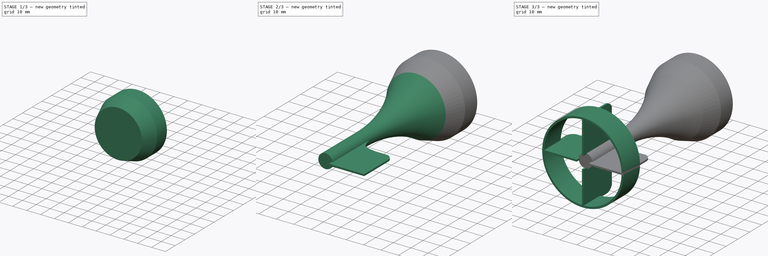
[diagram: build sequence overview — one tinted view per stage of 3, left to right]
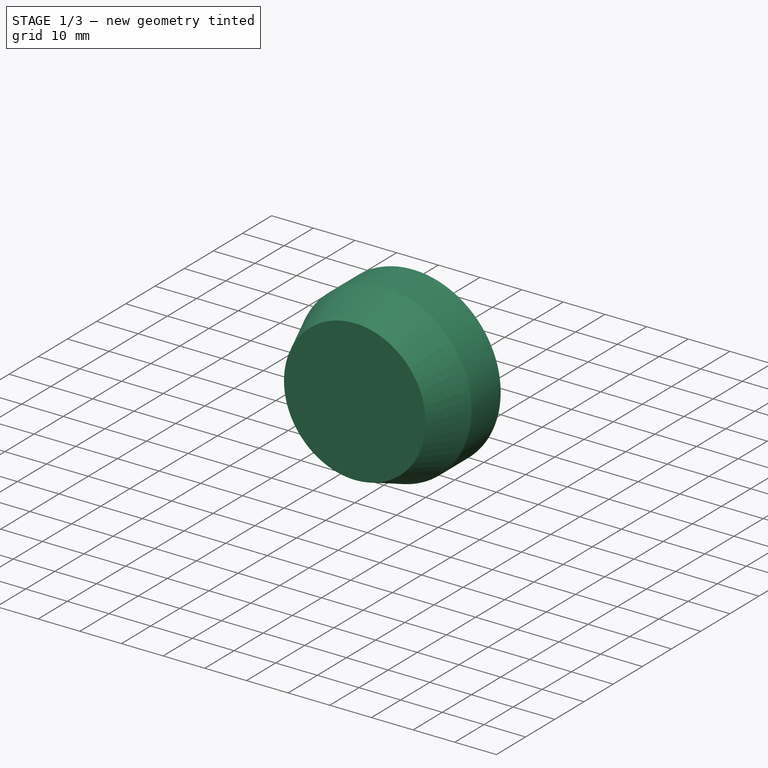
[diagram: stage 1 of 3 — iso view after this stage's code; geometry added in this stage tinted green]
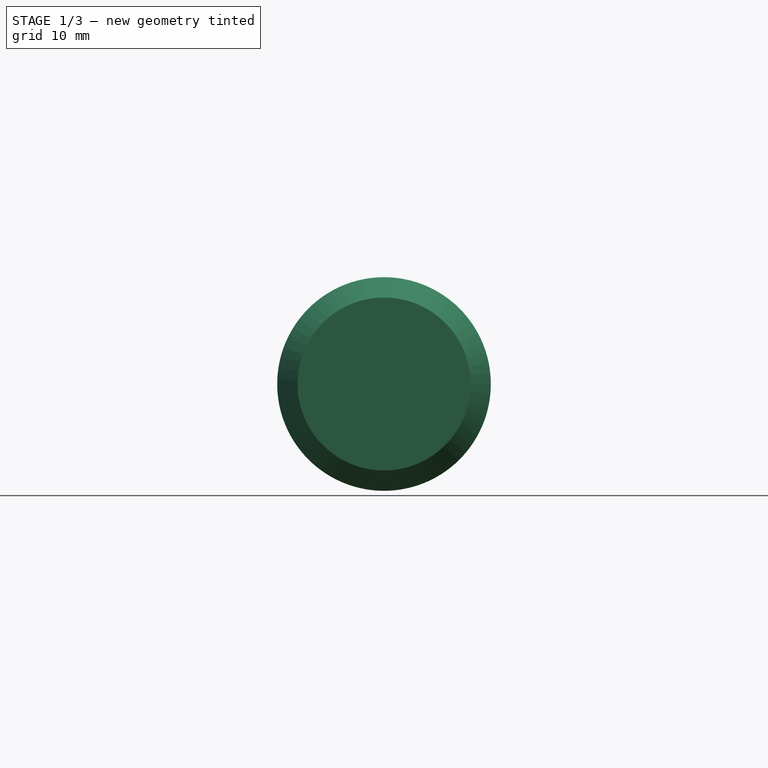
[diagram: stage 1 of 3 — front view after this stage's code; geometry added in this stage tinted green]
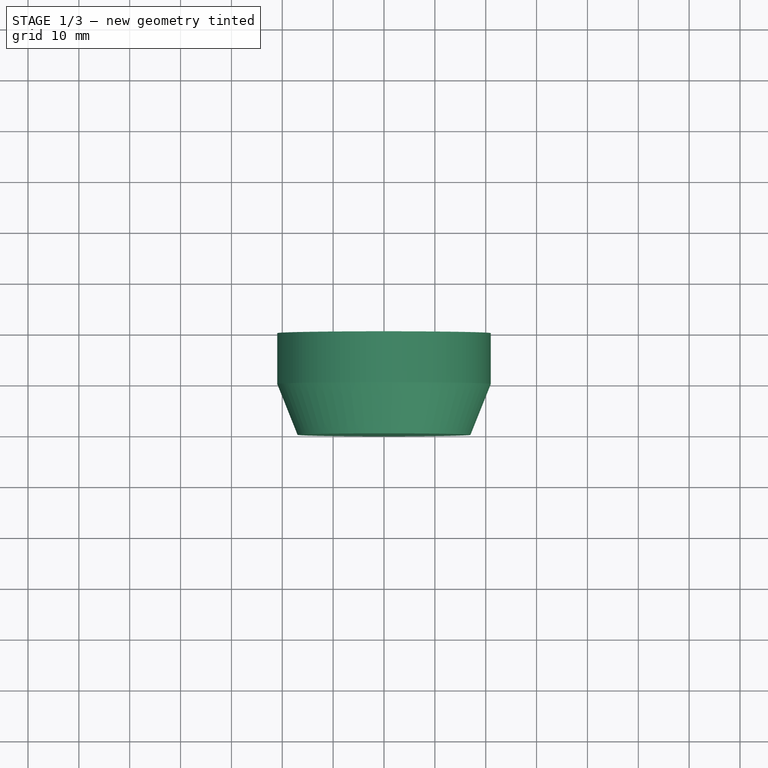
[diagram: stage 1 of 3 — top view after this stage's code; geometry added in this stage tinted green]
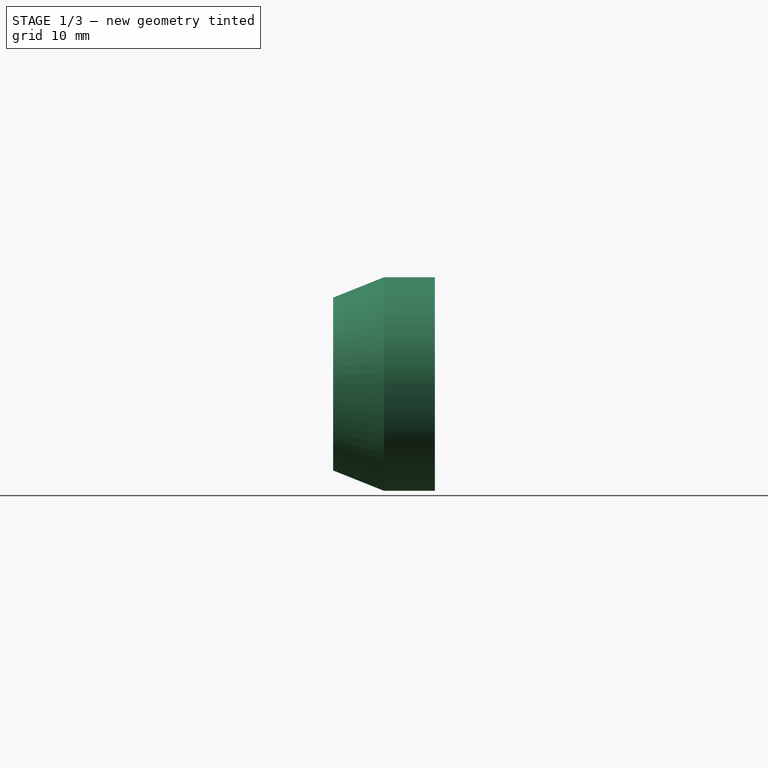
[diagram: stage 1 of 3 — right view after this stage's code; geometry added in this stage tinted green]
FCSTD DOCUMENT  (FreeCAD 0.21R33771 (Git))
Label: VOG-40_xvost
License: All rights reserved
LicenseURL: http://en.wikipedia.org/wiki/All_rights_reserved
objects: Sketcher::SketchObject×6, PartDesign::Pad×3, PartDesign::AdditiveLoft×1, PartDesign::Revolution×1, PartDesign::PolarPattern×1, PartDesign::Body×1
note: 18 computed .brp shape members not serialized (recipe doc carries the construction recipe); baked Part::Feature solids carry a one-line shape summary decoded from their .brp

FEATURE [Sketcher::SketchObject] Sketch
  FullyConstrained = false
  MapMode = 5
  Placement = pos=(0,0,0) rot=(1,0,0;1.5708rad)
  Support = -> [XZ_Plane]
  sketch-geometry (11):
    g0: LineSegment StartX=6.18034 StartY=19.0211 StartZ=0 EndX=-6.18034 EndY=19.0211 EndZ=0
    g1: LineSegment StartX=-16.1803 StartY=11.7557 StartZ=0 EndX=-20 EndY=1.8e-15 EndZ=0
    g2: LineSegment StartX=-16.1803 StartY=-11.7557 StartZ=0 EndX=-6.18034 EndY=-19.0211 EndZ=0
    g3: LineSegment StartX=6.18034 StartY=-19.0211 StartZ=0 EndX=16.1803 EndY=-11.7557 EndZ=0
    g4: LineSegment StartX=20 StartY=5.3e-15 StartZ=0 EndX=16.1803 EndY=11.7557 EndZ=0
    g5: ArcOfCircle CenterX=0 CenterY=0 CenterZ=0 NormalX=0 NormalY=0 NormalZ=1 AngleXU=0 Radius=20 StartAngle=1.88496 EndAngle=2.51327
    g6: ArcOfCircle CenterX=0 CenterY=0 CenterZ=0 NormalX=0 NormalY=0 NormalZ=1 AngleXU=0 Radius=20 StartAngle=3.14159 EndAngle=3.76991
    g7: ArcOfCircle CenterX=0 CenterY=0 CenterZ=0 NormalX=0 NormalY=0 NormalZ=1 AngleXU=0 Radius=20 StartAngle=4.39823 EndAngle=5.02655
    g8: ArcOfCircle CenterX=0 CenterY=0 CenterZ=0 NormalX=0 NormalY=0 NormalZ=1 AngleXU=0 Radius=20 StartAngle=5.65487 EndAngle=6.28319
    g9: ArcOfCircle CenterX=0 CenterY=0 CenterZ=0 NormalX=0 NormalY=0 NormalZ=1 AngleXU=0 Radius=20 StartAngle=0.628319 EndAngle=1.25664
    g10: Circle CenterX=0 CenterY=0 CenterZ=0 NormalX=0 NormalY=0 NormalZ=1 AngleXU=0 Radius=21
  constraints (27):
    c: PointOnObject(g2,g5)
    c: PointOnObject(g2,g5)
    c: PointOnObject(g3,g5)
    c: PointOnObject(g3,g5)
    c: PointOnObject(g4,g5)
    c: PointOnObject(g4,g5)
    c: Coincident(g5,g-1)
    c: Horizontal(g0)
    c: Distance(g4,g2) = 40
    c: Coincident(g5,g0)
    c: Equal(g5,g6)
    c: Coincident(g5,g1)
    c: Coincident(g6,g1)
    c: Coincident(g5,g6)
    c: Equal(g6,g7)
    c: PointOnObject(g6,g2)
    c: PointOnObject(g7,g2)
    c: Coincident(g6,g7)
    c: Equal(g7,g8)
    c: PointOnObject(g7,g3)
    c: PointOnObject(g8,g3)
    c: Coincident(g7,g8)
    c: Equal(g8,g9)
    c: PointOnObject(g8,g4)
    c: Coincident(g8,g9)
    c: Coincident(g10,g5)
    c: Radius(g10) = 21
FEATURE [PartDesign::Pad] Pad
  Direction = (0,-1,2e-16)
  Length = 10
  Length2 = 10
  Placement = pos=(0,0,0) rot=(1,0,0;1.5708rad)
  Profile = -> Sketch
  ReferenceAxis = -> Sketch [N_Axis]
  Refine = true
  Type = 0
FEATURE [Sketcher::SketchObject] Sketch001
  FullyConstrained = true
  MapMode = 5
  Placement = pos=(0,-10,2.2e-15) rot=(1,0,0;1.5708rad)
  Support = -> [Pad]
  sketch-geometry (1):
    g0: Circle CenterX=0 CenterY=0 CenterZ=0 NormalX=0 NormalY=0 NormalZ=1 AngleXU=0 Radius=21
  constraints (2):
    c: Coincident(g0,g-1)
    c: Radius(g0) = 21
FEATURE [Sketcher::SketchObject] Sketch002
  AttachmentOffset = pos=(0,0,20) rot=(0,0,1;0rad)
  FullyConstrained = true
  MapMode = 5
  Placement = pos=(0,-20,4.4e-15) rot=(1,0,0;1.5708rad)
  Support = -> [XZ_Plane]
  sketch-geometry (1):
    g0: Circle CenterX=0 CenterY=0 CenterZ=0 NormalX=0 NormalY=0 NormalZ=1 AngleXU=0 Radius=17
  constraints (2):
    c: Coincident(g0,g-1)
    c: Radius(g0) = 17
FEATURE [PartDesign::AdditiveLoft] AdditiveLoft
  BaseFeature = -> Pad
  Closed = false
  Placement = pos=(0,0,0) rot=(1,0,0;1.5708rad)
  Profile = -> Sketch001
  Refine = true
  Ruled = false
  Sections = -> [Sketch002]
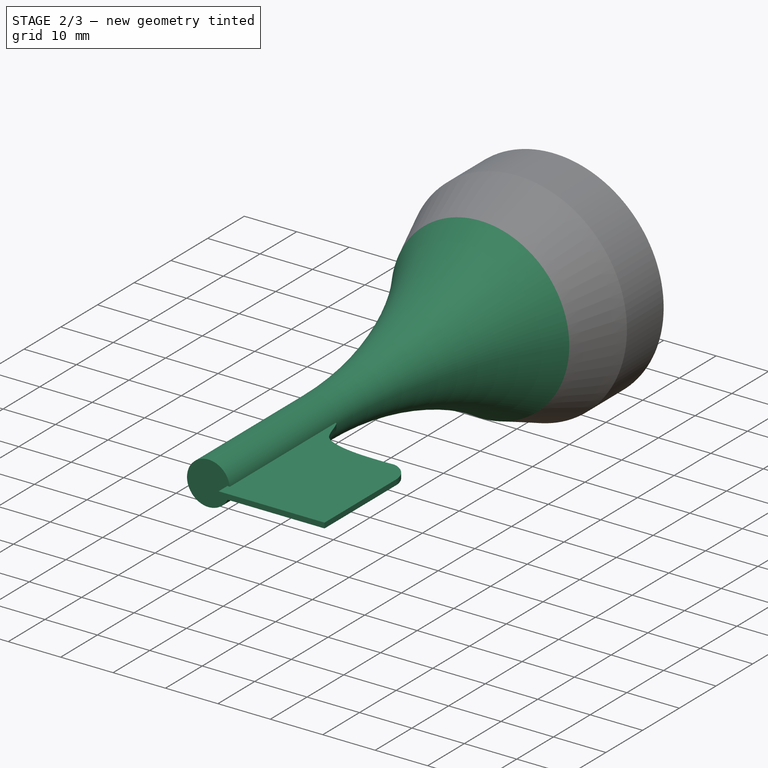
[diagram: stage 2 of 3 — iso view after this stage's code; geometry added in this stage tinted green]
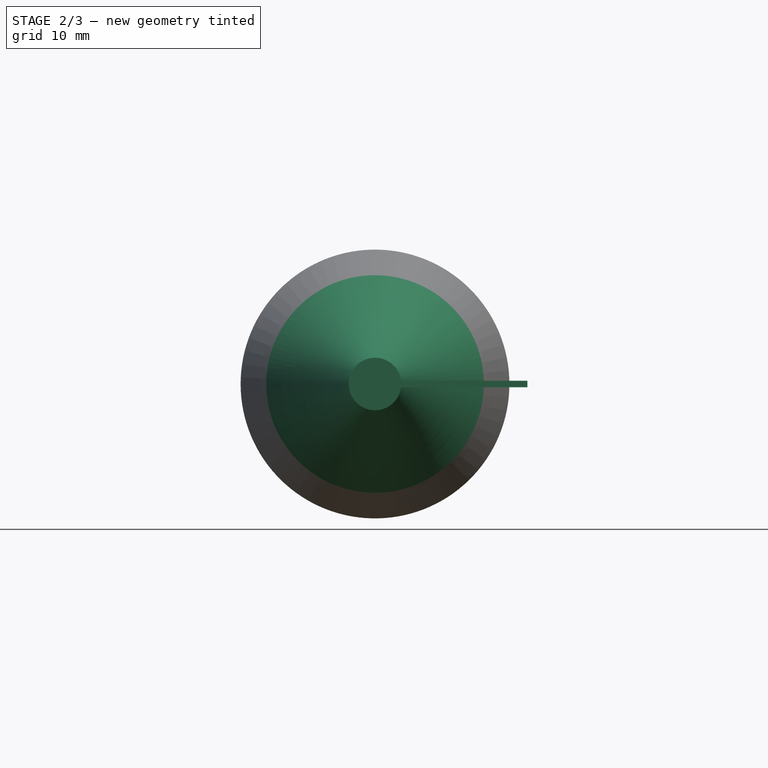
[diagram: stage 2 of 3 — front view after this stage's code; geometry added in this stage tinted green]
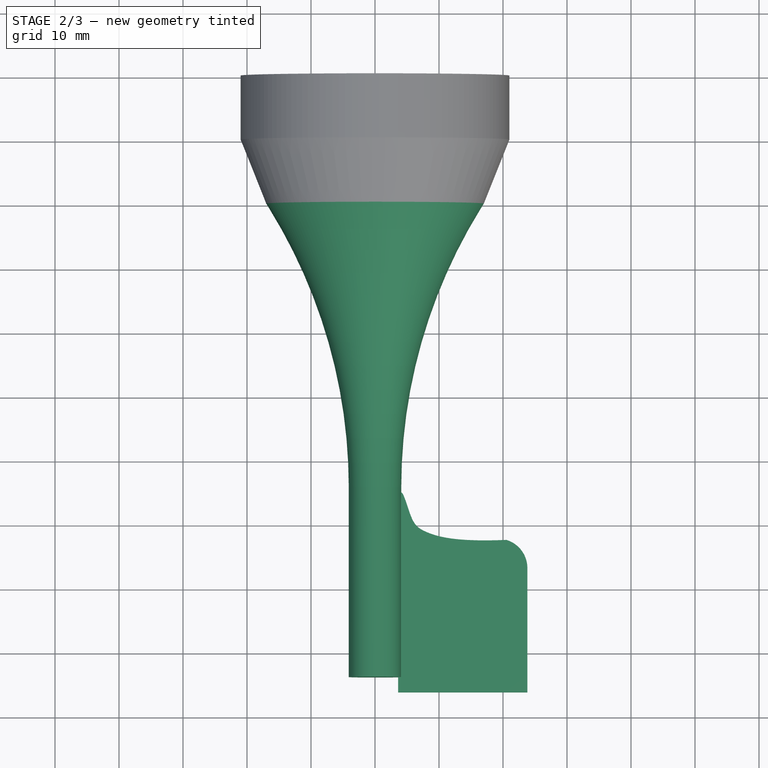
[diagram: stage 2 of 3 — top view after this stage's code; geometry added in this stage tinted green]
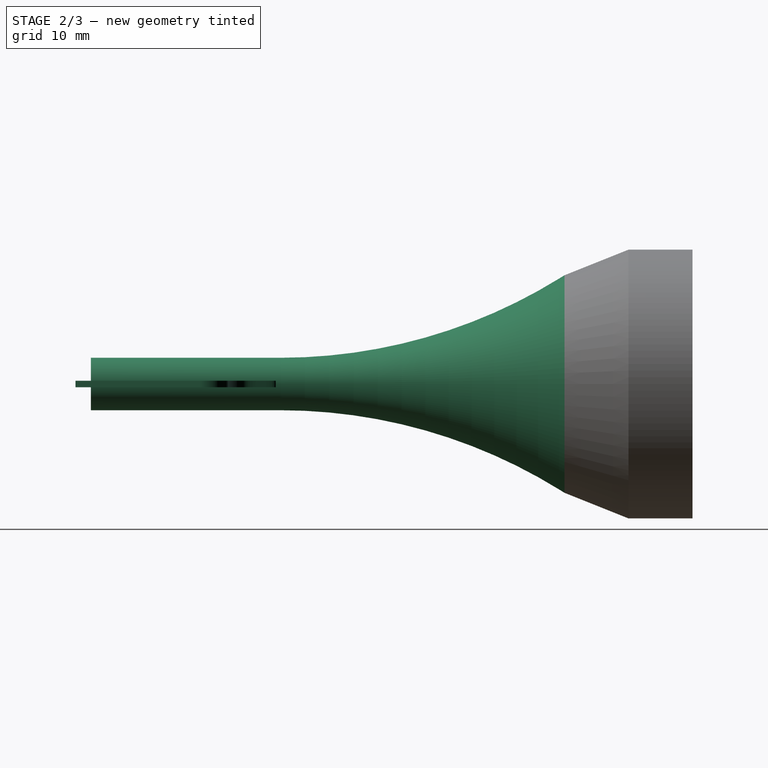
[diagram: stage 2 of 3 — right view after this stage's code; geometry added in this stage tinted green]
FEATURE [Sketcher::SketchObject] Sketch003
  FullyConstrained = false
  MapMode = 5
  Support = -> [XY_Plane]
  sketch-geometry (6):
    g0: LineSegment StartX=16.9987 StartY=-20 StartZ=0 EndX=16.4894 EndY=-20.823 EndZ=0
    g1: LineSegment StartX=4.09825 StartY=-64.3886 StartZ=0 EndX=4.09825 EndY=-94 EndZ=0
    g2: ArcOfCircle CenterX=86.8796 CenterY=-64.3886 CenterZ=0 NormalX=0 NormalY=0 NormalZ=1 AngleXU=0 Radius=82.7813 StartAngle=2.58738 EndAngle=3.14159
    g3: LineSegment StartX=16.9987 StartY=-20 StartZ=0 EndX=0.009094 EndY=-20 EndZ=0
    g4: LineSegment StartX=0.009094 StartY=-94 StartZ=0 EndX=4.09825 EndY=-94 EndZ=0
    g5: LineSegment StartX=0.009094 StartY=-94 StartZ=0 EndX=0.009094 EndY=-20 EndZ=0
  constraints (12):
    c: Vertical(g1)
    c: Tangent(g0,g2) = -1.5708
    c: Tangent(g1,g2) = -1.5708
    c: DistanceY(g1,g0) = 74
    c: DistanceY(g0,g-1) = 20
    c: Coincident(g4,g1)
    c: Horizontal(g4)
    c: Coincident(g5,g4)
    c: Coincident(g3,g5)
    c: Coincident(g3,g0)
    c: Vertical(g5)
    c: Horizontal(g3)
FEATURE [PartDesign::Revolution] Revolution
  Angle = 360
  Axis = (0,1,0)
  Base = (0,0,0)
  BaseFeature = -> AdditiveLoft
  Placement = pos=(0,0,0) rot=(1,0,0;1.5708rad)
  Profile = -> Sketch003
  ReferenceAxis = -> Sketch003 [V_Axis]
  Refine = true
  Reversed = true
FEATURE [Sketcher::SketchObject] Sketch004
  FullyConstrained = false
  MapMode = 5
  Support = -> [XY_Plane]
  sketch-geometry (8):
    g0: LineSegment StartX=3.60235 StartY=-66.5985 StartZ=0 EndX=3.60235 EndY=-96.3903 EndZ=0
    g1: LineSegment StartX=23.8086 StartY=-96.3903 StartZ=0 EndX=3.60235 EndY=-96.3903 EndZ=0
    g2: LineSegment StartX=23.8086 StartY=-76.9726 StartZ=0 EndX=23.8086 EndY=-96.3903 EndZ=0
    g3: ArcOfCircle CenterX=19.2133 CenterY=-76.9726 CenterZ=0 NormalX=0 NormalY=0 NormalZ=1 AngleXU=0 Radius=4.59539 StartAngle=-9e-16 EndAngle=1.28122
    g4: Circle CenterX=7.33204 CenterY=-70.9215 CenterZ=0 NormalX=0 NormalY=0 NormalZ=1 AngleXU=0 Radius=10
    g5: Circle CenterX=12.5942 CenterY=-72.4249 CenterZ=0 NormalX=0 NormalY=0 NormalZ=1 AngleXU=0 Radius=10
    g6: Circle CenterX=20.0531 CenterY=-73.0099 CenterZ=0 NormalX=0 NormalY=0 NormalZ=1 AngleXU=0 Radius=10
    g7: BSplineCurve PolesCount=6 KnotsCount=4 Degree=3 IsPeriodic=0
  constraints (10):
    c: Vertical(g0)
    c: Coincident(g1,g0)
    c: Horizontal(g1)
    c: Coincident(g2,g1)
    c: Vertical(g2)
    c: Tangent(g2,g3) = 1.5708
    c: Equal(g4,g5)
    c: Equal(g4,g6)
    c: Coincident(g7,g3)
    c: Coincident(g7,g0)
FEATURE [PartDesign::Pad] Pad001
  BaseFeature = -> Revolution
  Direction = (0,0,1)
  Length = 1
  Length2 = 10
  Midplane = true
  Placement = pos=(0,0,0) rot=(1,0,0;1.5708rad)
  Profile = -> Sketch004
  ReferenceAxis = -> Sketch004 [N_Axis]
  Refine = true
  Type = 0
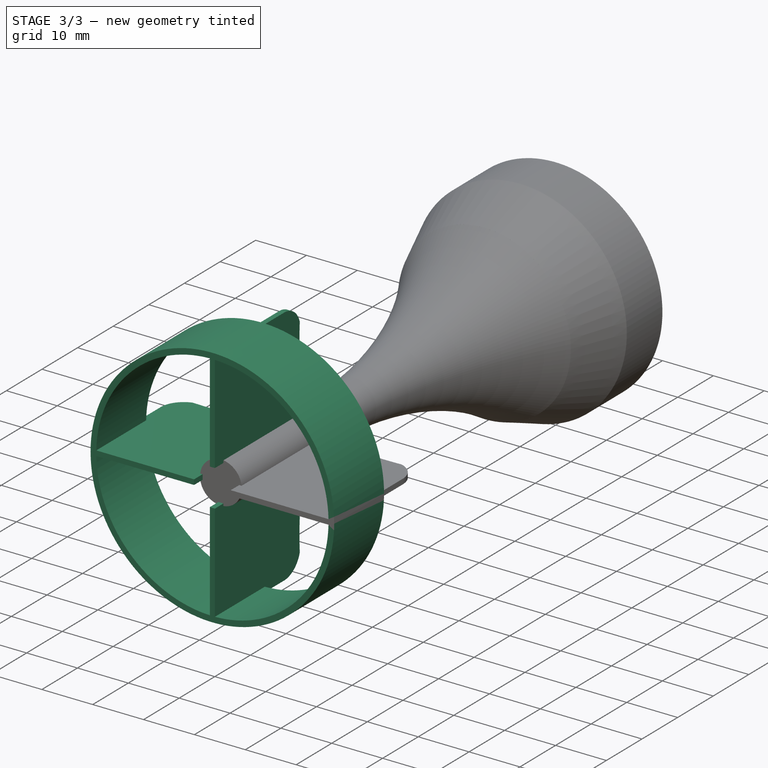
[diagram: stage 3 of 3 — iso view after this stage's code; geometry added in this stage tinted green]
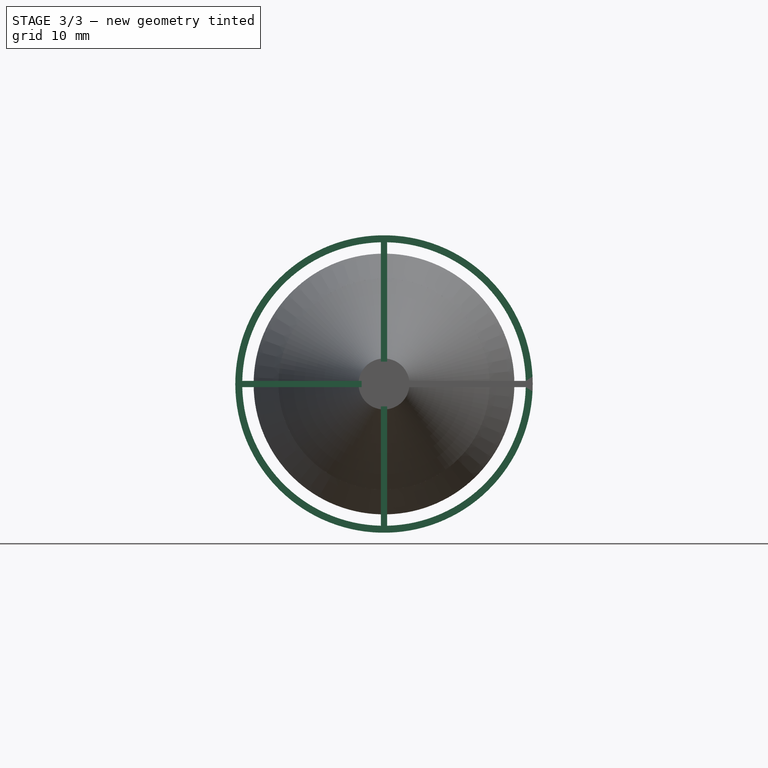
[diagram: stage 3 of 3 — front view after this stage's code; geometry added in this stage tinted green]
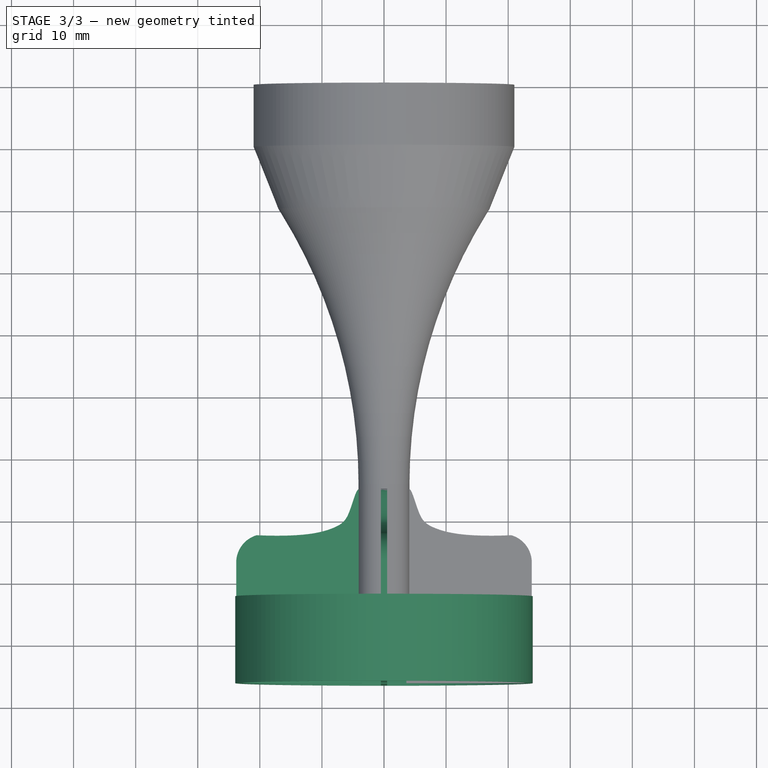
[diagram: stage 3 of 3 — top view after this stage's code; geometry added in this stage tinted green]
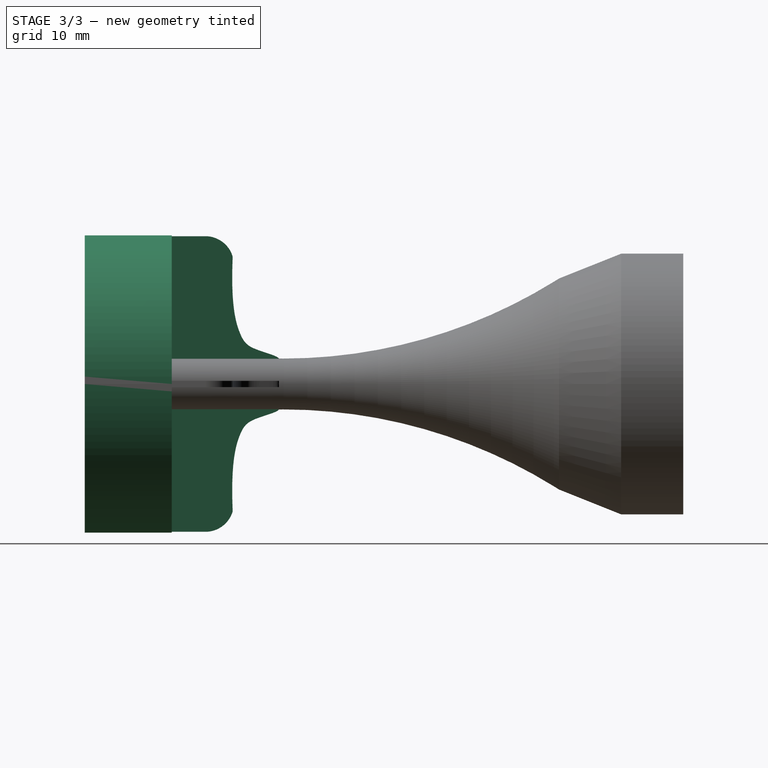
[diagram: stage 3 of 3 — right view after this stage's code; geometry added in this stage tinted green]
FEATURE [PartDesign::PolarPattern] PolarPattern
  Angle = 360
  Axis = -> Y_Axis
  BaseFeature = -> Pad001
  Occurrences = 4
  Originals = -> [Pad001]
  Placement = pos=(0,0,0) rot=(1,0,0;1.5708rad)
  Refine = true
FEATURE [Sketcher::SketchObject] Sketch005
  FullyConstrained = false
  MapMode = 5
  Placement = pos=(-2.14e-14,-96.3903,2.14e-14) rot=(1,0,0;1.5708rad)
  Support = -> [PolarPattern]
  sketch-geometry (2):
    g0: Circle CenterX=0 CenterY=0 CenterZ=0 NormalX=0 NormalY=0 NormalZ=1 AngleXU=0 Radius=22.8358
    g1: Circle CenterX=0 CenterY=0 CenterZ=0 NormalX=0 NormalY=0 NormalZ=1 AngleXU=0 Radius=23.9548
  constraints (2):
    c: Coincident(g0,g-1)
    c: Coincident(g1,g0)
FEATURE [PartDesign::Pad] Pad002
  BaseFeature = -> PolarPattern
  Direction = (-2e-16,-1,2e-16)
  Length = 14
  Length2 = 10
  Placement = pos=(0,0,0) rot=(1,0,0;1.5708rad)
  Profile = -> Sketch005
  ReferenceAxis = -> Sketch005 [N_Axis]
  Refine = true
  Reversed = true
  Type = 0
FEATURE [PartDesign::Body] Body
  Group = -> [Sketch,Pad,Sketch001,Sketch002,AdditiveLoft,Sketch003,Revolution,Sketch004,Pad001,PolarPattern,Sketch005,Pad002]
  Origin = -> Origin
  Tip = -> Pad002
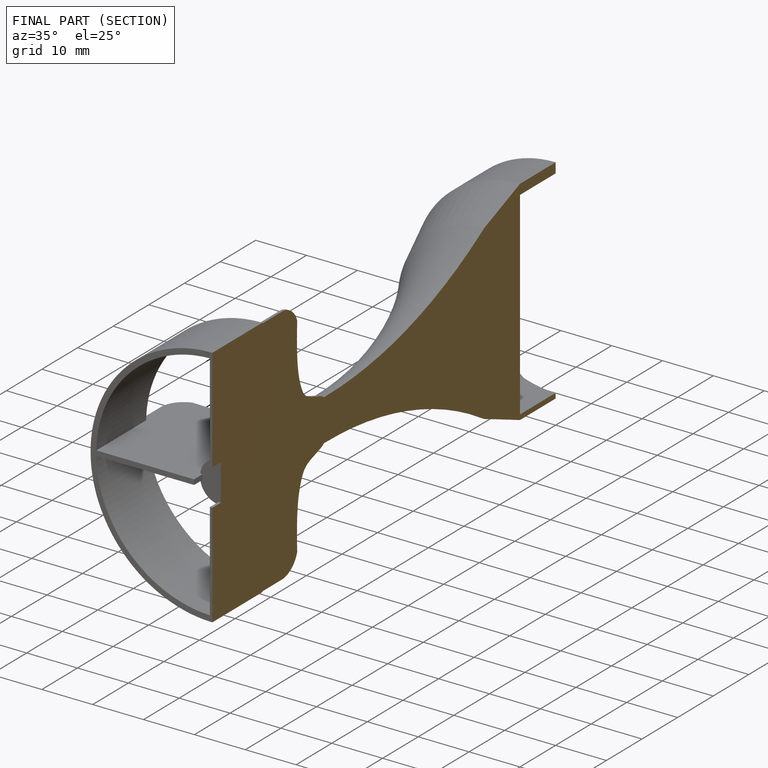
[diagram: finished part — half-section view (interior)]
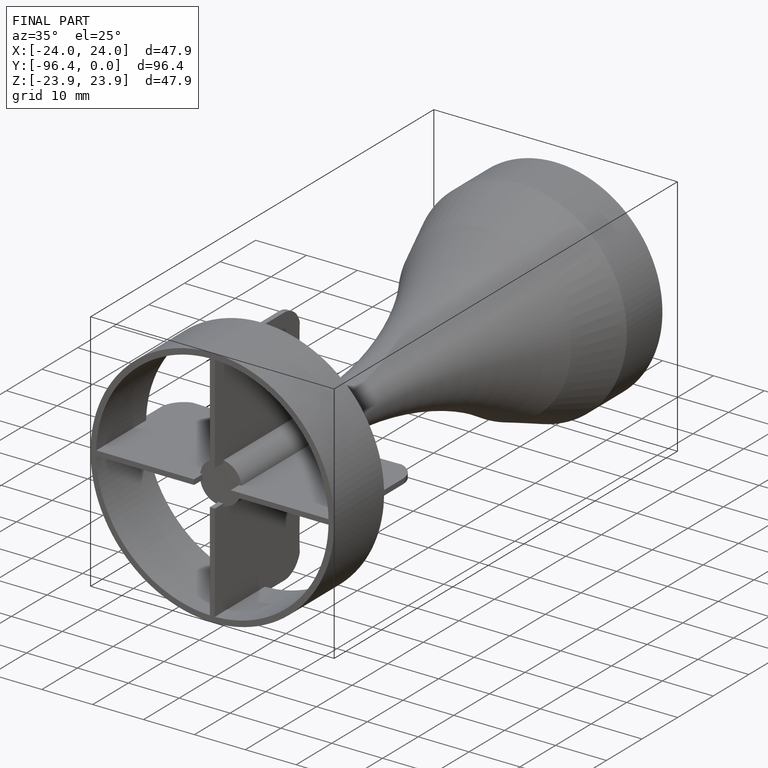
[diagram: finished part — iso view with bounding-box wireframe]
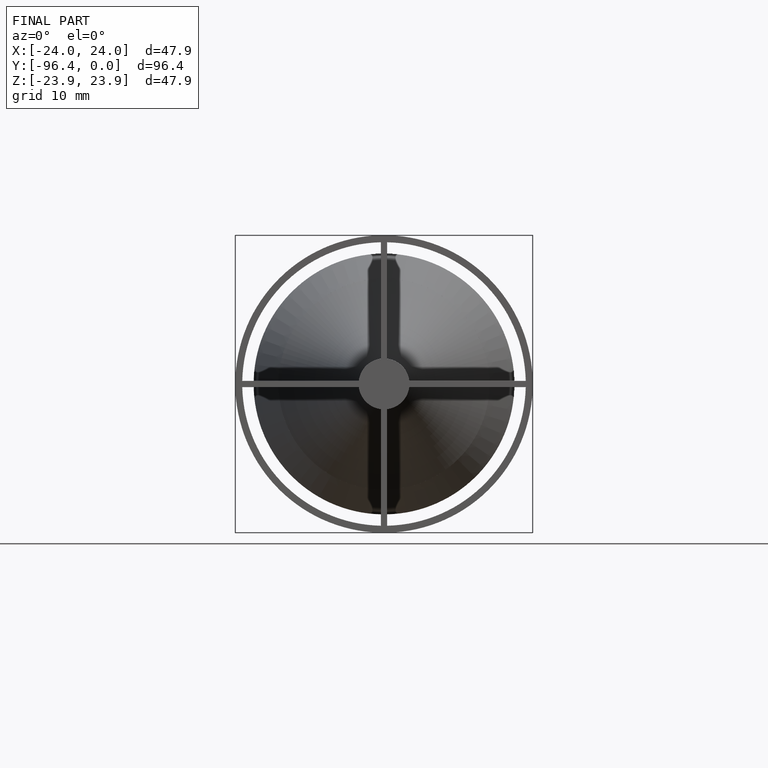
[diagram: finished part — front view with bounding-box wireframe]
